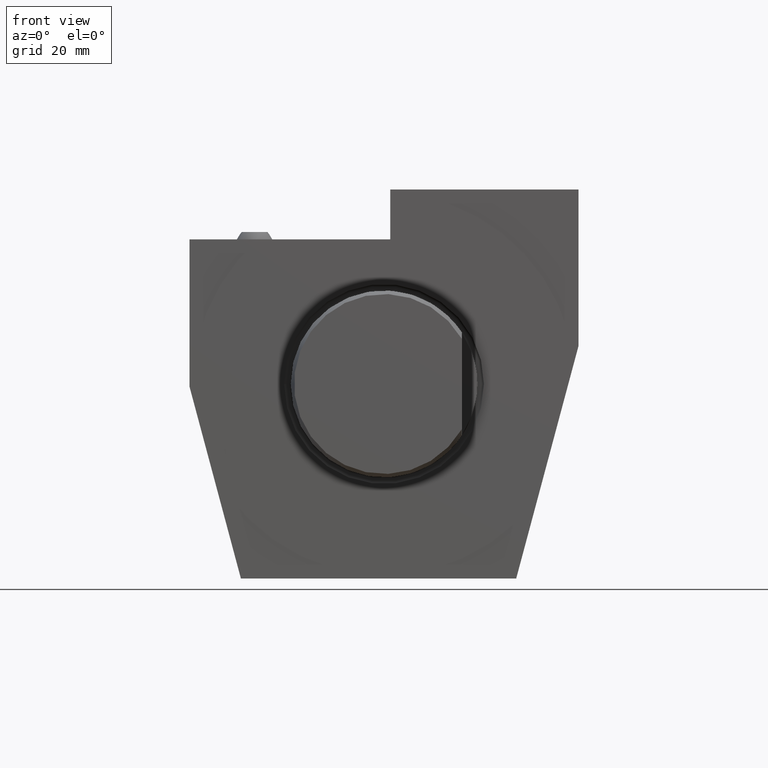
[diagram: clean part render]
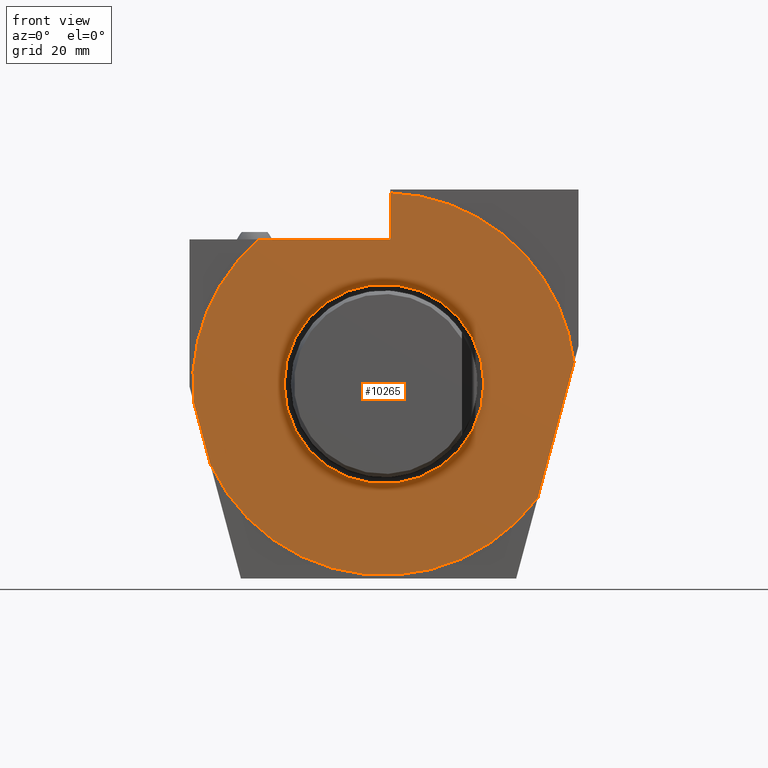
[diagram: same view with one face highlighted and labeled with its STEP entity id]
A machine part, front view. The second image highlights one B-rep face of the part: STEP entity #10265.
In plain terms, the highlighted planar face has unit normal (0, -1, 0).
Its self-contained STEP definition (entity closure, byte-faithful):
#48 = VERTEX_POINT ( 'NONE', #18868 ) ;
#396 = CARTESIAN_POINT ( 'NONE',  ( -4.870428485707509475E-31, 3.759870975334213464E-15, 0.000000000000000000 ) ) ;
#536 = EDGE_LOOP ( 'NONE', ( #12575 ) ) ;
#869 = VERTEX_POINT ( 'NONE', #10521 ) ;
#1346 = DIRECTION ( 'NONE',  ( 1.000000000000000000, 1.295371175675670281E-16, 0.000000000000000000 ) ) ;
#1395 = DIRECTION ( 'NONE',  ( -1.355252715606880789E-16, -1.755555303553329942E-32, -1.000000000000000000 ) ) ;
#1586 = EDGE_CURVE ( 'NONE', #10928, #14034, #2844, .T. ) ;
#2222 = VERTEX_POINT ( 'NONE', #8636 ) ;
#2424 = EDGE_CURVE ( 'NONE', #869, #14141, #15461, .T. ) ;
#2481 = DIRECTION ( 'NONE',  ( -1.295371175675670281E-16, 1.000000000000000000, -0.000000000000000000 ) ) ;
#2517 = CARTESIAN_POINT ( 'NONE',  ( -1.036296940540534203E-16, 3.577867169202164632E-15, 0.000000000000000000 ) ) ;
#2741 = CARTESIAN_POINT ( 'NONE',  ( -55.84359187877500830, -4.206661139452149706E-15, -25.76321497943944649 ) ) ;
#2844 = LINE ( 'NONE', #13917, #8649 ) ;
#3052 = CARTESIAN_POINT ( 'NONE',  ( -32.14999999999999147, -5.085353770183706577E-16, 46.50000000000000000 ) ) ;
#3665 = CARTESIAN_POINT ( 'NONE',  ( 61.10693936079718469, -4.206662149231642391E-15, 6.942043067847998294 ) ) ;
#4002 = AXIS2_PLACEMENT_3D ( 'NONE', #12404, #10948, #17235 ) ;
#4542 = DIRECTION ( 'NONE',  ( 0.2588190451025215166, 3.352667307417076517E-17, 0.9659258262890679791 ) ) ;
#5297 = VECTOR ( 'NONE', #1395, 1000.000000000000000 ) ;
#5324 = ORIENTED_EDGE ( 'NONE', *, *, #6923, .F. ) ;
#5427 = CARTESIAN_POINT ( 'NONE',  ( 32.09480944164828031, 7.735336273153617276E-15, 0.000000000000000000 ) ) ;
#6452 = AXIS2_PLACEMENT_3D ( 'NONE', #18172, #2481, #19825 ) ;
#6923 = EDGE_CURVE ( 'NONE', #48, #14141, #8762, .T. ) ;
#7235 = ORIENTED_EDGE ( 'NONE', *, *, #2424, .T. ) ;
#7312 = VERTEX_POINT ( 'NONE', #11038 ) ;
#8636 = CARTESIAN_POINT ( 'NONE',  ( 2.000000000000005773, 0.000000000000000000, 46.50000000000000000 ) ) ;
#8649 = VECTOR ( 'NONE', #20178, 1000.000000000000227 ) ;
#8762 = CIRCLE ( 'NONE', #6452, 61.50000000000000000 ) ;
#8808 = EDGE_CURVE ( 'NONE', #2222, #7312, #14228, .T. ) ;
#8947 = ORIENTED_EDGE ( 'NONE', *, *, #1586, .T. ) ;
#9516 = FACE_OUTER_BOUND ( 'NONE', #13939, .T. ) ;
#9687 = DIRECTION ( 'NONE',  ( -1.000000000000000000, -1.295371175675670281E-16, 0.000000000000000000 ) ) ;
#9716 = EDGE_CURVE ( 'NONE', #869, #14034, #13231, .T. ) ;
#10265 = ADVANCED_FACE ( 'Defeature completata2_1', ( #9516, #11053 ), #15494, .T. ) ;
#10492 = DIRECTION ( 'NONE',  ( 1.295371175675670281E-16, -1.000000000000000000, 0.000000000000000000 ) ) ;
#10521 = CARTESIAN_POINT ( 'NONE',  ( 49.44914030004156302, 1.016537007599581278E-14, -36.56545533132064918 ) ) ;
#10928 = VERTEX_POINT ( 'NONE', #15643 ) ;
#10929 = ORIENTED_EDGE ( 'NONE', *, *, #10939, .T. ) ;
#10939 = EDGE_CURVE ( 'NONE', #48, #2222, #15444, .T. ) ;
#10948 = DIRECTION ( 'NONE',  ( -1.295371175675670281E-16, 1.000000000000000000, -0.000000000000000000 ) ) ;
#11038 = CARTESIAN_POINT ( 'NONE',  ( -40.24922359499620939, -4.206666086877655496E-15, 46.50000000000000000 ) ) ;
#11053 = FACE_BOUND ( 'NONE', #536, .T. ) ;
#11091 = VECTOR ( 'NONE', #9687, 1000.000000000000000 ) ;
#11253 = VECTOR ( 'NONE', #4542, 1000.000000000000114 ) ;
#12404 = CARTESIAN_POINT ( 'NONE',  ( -4.870428485707509475E-31, 3.759870975334213464E-15, 0.000000000000000000 ) ) ;
#12575 = ORIENTED_EDGE ( 'NONE', *, *, #14971, .F. ) ;
#13115 = DIRECTION ( 'NONE',  ( -1.000000000000000000, -1.295371175675670281E-16, 0.000000000000000000 ) ) ;
#13231 = CIRCLE ( 'NONE', #4002, 61.50000000000000000 ) ;
#13319 = DIRECTION ( 'NONE',  ( -1.295371175675670281E-16, 1.000000000000000000, -0.000000000000000000 ) ) ;
#13457 = ORIENTED_EDGE ( 'NONE', *, *, #16589, .F. ) ;
#13917 = CARTESIAN_POINT ( 'NONE',  ( -60.69722592120725579, -4.206460737401692535E-15, -7.649206131736317360 ) ) ;
#13939 = EDGE_LOOP ( 'NONE', ( #18825, #7235, #5324, #10929, #16181, #13457, #8947 ) ) ;
#14034 = VERTEX_POINT ( 'NONE', #2741 ) ;
#14119 = CIRCLE ( 'NONE', #16411, 32.09480944164828031 ) ;
#14141 = VERTEX_POINT ( 'NONE', #3665 ) ;
#14228 = LINE ( 'NONE', #3052, #11091 ) ;
#14971 = EDGE_CURVE ( 'NONE', #19515, #19515, #14119, .T. ) ;
#15101 = AXIS2_PLACEMENT_3D ( 'NONE', #396, #13319, #13115 ) ;
#15323 = DIRECTION ( 'NONE',  ( 1.000000000000000000, 1.295371175675670281E-16, 0.000000000000000000 ) ) ;
#15444 = LINE ( 'NONE', #15546, #5297 ) ;
#15461 = LINE ( 'NONE', #18840, #11253 ) ;
#15494 = PLANE ( 'NONE',  #18167 ) ;
#15546 = CARTESIAN_POINT ( 'NONE',  ( 1.999999999999994893, 3.915157187914041944E-15, -4.628188023797496264E-15 ) ) ;
#15643 = CARTESIAN_POINT ( 'NONE',  ( -61.24357669530926529, -4.173445419304369871E-15, -5.610197284033023202 ) ) ;
#16092 = CIRCLE ( 'NONE', #15101, 61.50000000000000000 ) ;
#16181 = ORIENTED_EDGE ( 'NONE', *, *, #8808, .T. ) ;
#16411 = AXIS2_PLACEMENT_3D ( 'NONE', #2517, #10492, #15323 ) ;
#16589 = EDGE_CURVE ( 'NONE', #10928, #7312, #16092, .T. ) ;
#17235 = DIRECTION ( 'NONE',  ( -1.000000000000000000, -1.295371175675670281E-16, 0.000000000000000000 ) ) ;
#17335 = DIRECTION ( 'NONE',  ( 1.295371175675670281E-16, -1.000000000000000000, 0.000000000000000000 ) ) ;
#18167 = AXIS2_PLACEMENT_3D ( 'NONE', #20220, #17335, #1346 ) ;
#18172 = CARTESIAN_POINT ( 'NONE',  ( -4.870428485707509475E-31, 3.759870975334213464E-15, 0.000000000000000000 ) ) ;
#18825 = ORIENTED_EDGE ( 'NONE', *, *, #9716, .F. ) ;
#18840 = CARTESIAN_POINT ( 'NONE',  ( 53.12439819625420512, 1.053766436763333459E-14, -22.84920613173637705 ) ) ;
#18868 = CARTESIAN_POINT ( 'NONE',  ( 2.000000000000007550, -4.206662133801847306E-15, 61.46747107210447325 ) ) ;
#19515 = VERTEX_POINT ( 'NONE', #5427 ) ;
#19825 = DIRECTION ( 'NONE',  ( -1.000000000000000000, -1.295371175675670281E-16, 0.000000000000000000 ) ) ;
#20178 = DIRECTION ( 'NONE',  ( 0.2588190451025212946, 3.352667307417073436E-17, -0.9659258262890682012 ) ) ;
#20220 = CARTESIAN_POINT ( 'NONE',  ( -32.14999999999999147, -5.085353770183706577E-16, 0.000000000000000000 ) ) ;